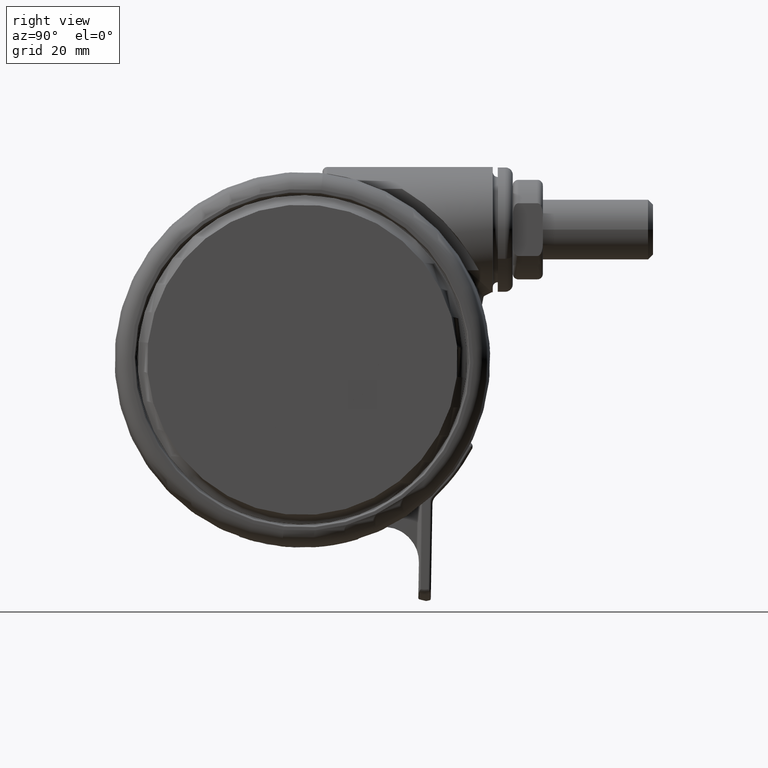
[diagram: clean part render]
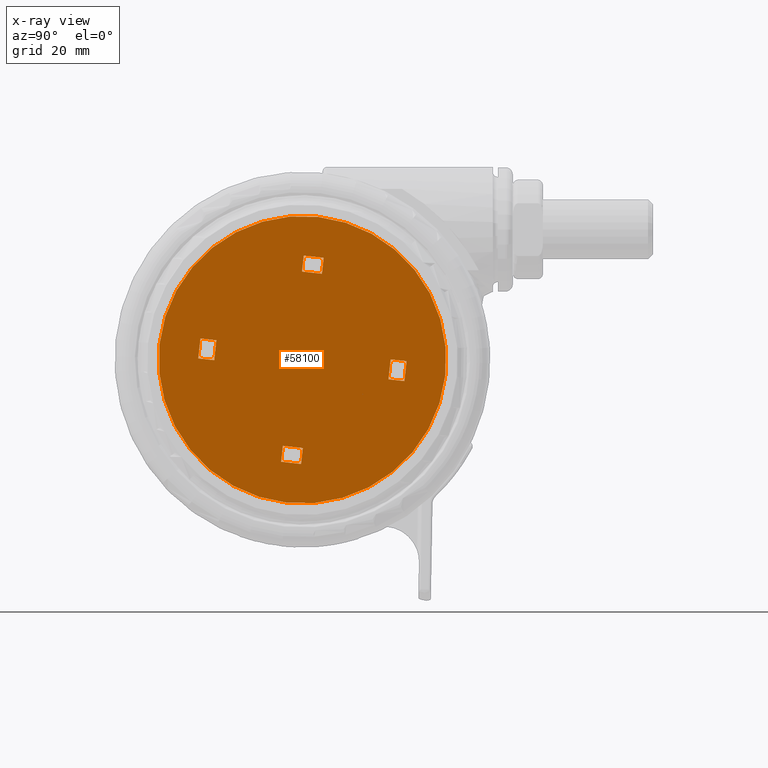
[diagram: x-ray — body ghosted, one internal face saturated and labeled with its STEP entity id]
A machine part, right view, then the same camera in x-ray: the body is ghosted and one INTERNAL B-rep face — a face not visible from any outside direction — is saturated and labeled: STEP entity #58100.
In plain terms, the highlighted planar face has unit normal (1, 0, 0).
Its self-contained STEP definition (entity closure, byte-faithful):
#60 = LINE ( 'NONE', #4554, #43756 ) ;
#337 = CARTESIAN_POINT ( 'NONE',  ( -20.69999999999999900, 1.999999999999930300, -1.500000000000001300 ) ) ;
#544 = CARTESIAN_POINT ( 'NONE',  ( 2.000000000000000000, 20.69999999999999900, -1.500000000000001300 ) ) ;
#836 = EDGE_CURVE ( 'NONE', #31007, #35996, #51727, .T. ) ;
#841 = EDGE_LOOP ( 'NONE', ( #5911, #6149 ) ) ;
#910 = DIRECTION ( 'NONE',  ( 1.000000000000000000, 0.0000000000000000000, 0.0000000000000000000 ) ) ;
#1376 = DIRECTION ( 'NONE',  ( 1.000000000000000000, -0.0000000000000000000, -0.0000000000000000000 ) ) ;
#1592 = VECTOR ( 'NONE', #23950, 1000.000000000000000 ) ;
#2419 = EDGE_CURVE ( 'NONE', #22467, #33610, #68362, .T. ) ;
#3696 = CARTESIAN_POINT ( 'NONE',  ( 17.50000000000000000, -1.999999999999820100, -1.500000000000001300 ) ) ;
#3705 = CARTESIAN_POINT ( 'NONE',  ( 20.69999999999999900, -1.999999999999784800, -1.500000000000001300 ) ) ;
#3952 = CARTESIAN_POINT ( 'NONE',  ( 2.000000000000000000, -20.69999999999999900, -1.500000000000001300 ) ) ;
#4146 = ORIENTED_EDGE ( 'NONE', *, *, #60687, .F. ) ;
#4282 = FACE_BOUND ( 'NONE', #5265, .T. ) ;
#4554 = CARTESIAN_POINT ( 'NONE',  ( 2.000000000000000000, -19.69999999999999900, -1.500000000000001300 ) ) ;
#4624 = CARTESIAN_POINT ( 'NONE',  ( -20.69999999999999900, -2.000000000000069700, -1.500000000000001300 ) ) ;
#5265 = EDGE_LOOP ( 'NONE', ( #64036, #17196, #4146, #60123 ) ) ;
#5751 = DIRECTION ( 'NONE',  ( -3.614007241618350200E-016, -1.000000000000000000, -0.0000000000000000000 ) ) ;
#5858 = DIRECTION ( 'NONE',  ( 0.0000000000000000000, 0.0000000000000000000, 1.000000000000000000 ) ) ;
#5911 = ORIENTED_EDGE ( 'NONE', *, *, #836, .T. ) ;
#6068 = FACE_BOUND ( 'NONE', #31606, .T. ) ;
#6149 = ORIENTED_EDGE ( 'NONE', *, *, #27013, .T. ) ;
#6904 = DIRECTION ( 'NONE',  ( -1.000000000000000000, -0.0000000000000000000, -0.0000000000000000000 ) ) ;
#7338 = LINE ( 'NONE', #4624, #20594 ) ;
#8305 = ORIENTED_EDGE ( 'NONE', *, *, #61871, .F. ) ;
#8411 = CARTESIAN_POINT ( 'NONE',  ( 2.000000000000000000, -17.50000000000000000, -1.500000000000001300 ) ) ;
#8857 = EDGE_LOOP ( 'NONE', ( #48553, #24567, #29585, #61770 ) ) ;
#9079 = LINE ( 'NONE', #10105, #51015 ) ;
#10105 = CARTESIAN_POINT ( 'NONE',  ( -2.000000000000000000, -17.50000000000000000, -1.500000000000001300 ) ) ;
#10216 = DIRECTION ( 'NONE',  ( -3.614007241618350200E-016, -1.000000000000000000, -0.0000000000000000000 ) ) ;
#10434 = CARTESIAN_POINT ( 'NONE',  ( 17.50000000000000000, -1.999999999999820100, -1.500000000000001300 ) ) ;
#10630 = AXIS2_PLACEMENT_3D ( 'NONE', #62614, #5858, #45735 ) ;
#12033 = VECTOR ( 'NONE', #39031, 1000.000000000000000 ) ;
#12587 = CARTESIAN_POINT ( 'NONE',  ( -2.000000000000000000, 20.69999999999999900, -1.500000000000001300 ) ) ;
#13168 = ORIENTED_EDGE ( 'NONE', *, *, #42261, .T. ) ;
#13359 = EDGE_CURVE ( 'NONE', #45980, #17792, #54345, .T. ) ;
#13704 = EDGE_CURVE ( 'NONE', #27054, #17527, #21197, .T. ) ;
#13740 = CARTESIAN_POINT ( 'NONE',  ( 0.0000000000000000000, 0.0000000000000000000, -1.500000000000001300 ) ) ;
#14094 = EDGE_LOOP ( 'NONE', ( #31095, #68940, #52192, #26950 ) ) ;
#15203 = CARTESIAN_POINT ( 'NONE',  ( -2.000000000000000000, -17.50000000000000000, -1.500000000000001300 ) ) ;
#16736 = VECTOR ( 'NONE', #23535, 1000.000000000000000 ) ;
#17196 = ORIENTED_EDGE ( 'NONE', *, *, #65356, .T. ) ;
#17527 = VERTEX_POINT ( 'NONE', #71510 ) ;
#17792 = VERTEX_POINT ( 'NONE', #63014 ) ;
#17833 = CARTESIAN_POINT ( 'NONE',  ( -19.69999999999999900, -2.000000000000065300, -1.500000000000001300 ) ) ;
#17849 = VECTOR ( 'NONE', #1376, 1000.000000000000000 ) ;
#19341 = FACE_BOUND ( 'NONE', #8857, .T. ) ;
#19451 = DIRECTION ( 'NONE',  ( 1.000000000000000000, 0.0000000000000000000, 0.0000000000000000000 ) ) ;
#20305 = VERTEX_POINT ( 'NONE', #32796 ) ;
#20327 = VECTOR ( 'NONE', #70963, 1000.000000000000000 ) ;
#20594 = VECTOR ( 'NONE', #32941, 1000.000000000000000 ) ;
#20605 = LINE ( 'NONE', #39878, #66140 ) ;
#21197 = LINE ( 'NONE', #73090, #49865 ) ;
#21897 = CARTESIAN_POINT ( 'NONE',  ( 28.69999999999999900, 0.0000000000000000000, -1.500000000000001300 ) ) ;
#22467 = VERTEX_POINT ( 'NONE', #52238 ) ;
#23355 = LINE ( 'NONE', #3696, #52001 ) ;
#23535 = DIRECTION ( 'NONE',  ( -1.000000000000000000, -3.130080614681300600E-015, -0.0000000000000000000 ) ) ;
#23950 = DIRECTION ( 'NONE',  ( -1.047444401652940200E-014, 1.000000000000000000, -0.0000000000000000000 ) ) ;
#24335 = LINE ( 'NONE', #24598, #54750 ) ;
#24567 = ORIENTED_EDGE ( 'NONE', *, *, #59881, .T. ) ;
#24598 = CARTESIAN_POINT ( 'NONE',  ( 19.69999999999999900, -1.999999999999794800, -1.500000000000001300 ) ) ;
#25435 = EDGE_CURVE ( 'NONE', #66349, #20305, #7338, .T. ) ;
#26950 = ORIENTED_EDGE ( 'NONE', *, *, #67171, .T. ) ;
#27013 = EDGE_CURVE ( 'NONE', #35996, #31007, #68014, .T. ) ;
#27054 = VERTEX_POINT ( 'NONE', #52233 ) ;
#27106 = LINE ( 'NONE', #33247, #12033 ) ;
#29585 = ORIENTED_EDGE ( 'NONE', *, *, #31173, .F. ) ;
#30108 = VECTOR ( 'NONE', #46438, 1000.000000000000000 ) ;
#31007 = VERTEX_POINT ( 'NONE', #21897 ) ;
#31095 = ORIENTED_EDGE ( 'NONE', *, *, #2419, .F. ) ;
#31173 = EDGE_CURVE ( 'NONE', #66349, #37463, #47157, .T. ) ;
#31606 = EDGE_LOOP ( 'NONE', ( #8305, #32406, #45463, #13168 ) ) ;
#31947 = VERTEX_POINT ( 'NONE', #3952 ) ;
#32406 = ORIENTED_EDGE ( 'NONE', *, *, #13359, .T. ) ;
#32796 = CARTESIAN_POINT ( 'NONE',  ( -20.69999999999999900, -2.000000000000069700, -1.500000000000001300 ) ) ;
#32941 = DIRECTION ( 'NONE',  ( 3.491481338843135300E-015, -1.000000000000000000, -0.0000000000000000000 ) ) ;
#33102 = VERTEX_POINT ( 'NONE', #10434 ) ;
#33247 = CARTESIAN_POINT ( 'NONE',  ( -17.50000000000000000, 1.999999999999940300, -1.500000000000001300 ) ) ;
#33610 = VERTEX_POINT ( 'NONE', #15203 ) ;
#34226 = VERTEX_POINT ( 'NONE', #58464 ) ;
#34532 = FACE_BOUND ( 'NONE', #14094, .T. ) ;
#34910 = CARTESIAN_POINT ( 'NONE',  ( -19.69999999999999900, 1.999999999999934900, -1.500000000000001300 ) ) ;
#34987 = DIRECTION ( 'NONE',  ( -0.0000000000000000000, -0.0000000000000000000, -1.000000000000000000 ) ) ;
#35996 = VERTEX_POINT ( 'NONE', #67185 ) ;
#36301 = VECTOR ( 'NONE', #50951, 1000.000000000000000 ) ;
#37463 = VERTEX_POINT ( 'NONE', #53504 ) ;
#37620 = VERTEX_POINT ( 'NONE', #71592 ) ;
#39031 = DIRECTION ( 'NONE',  ( -3.491481338843135300E-015, 1.000000000000000000, -0.0000000000000000000 ) ) ;
#39878 = CARTESIAN_POINT ( 'NONE',  ( 2.000000000000000000, 19.69999999999999900, -1.500000000000001300 ) ) ;
#39984 = PLANE ( 'NONE',  #10630 ) ;
#40070 = EDGE_CURVE ( 'NONE', #50044, #20305, #47166, .T. ) ;
#41217 = CARTESIAN_POINT ( 'NONE',  ( 2.000000000000000000, 17.50000000000000000, -1.500000000000001300 ) ) ;
#42261 = EDGE_CURVE ( 'NONE', #37620, #34226, #61554, .T. ) ;
#43756 = VECTOR ( 'NONE', #10216, 1000.000000000000000 ) ;
#44280 = DIRECTION ( 'NONE',  ( -1.000000000000000000, -0.0000000000000000000, -0.0000000000000000000 ) ) ;
#45463 = ORIENTED_EDGE ( 'NONE', *, *, #59675, .F. ) ;
#45735 = DIRECTION ( 'NONE',  ( 1.000000000000000000, 0.0000000000000000000, 0.0000000000000000000 ) ) ;
#45980 = VERTEX_POINT ( 'NONE', #544 ) ;
#46438 = DIRECTION ( 'NONE',  ( 1.000000000000000000, 3.130080614681300600E-015, 0.0000000000000000000 ) ) ;
#47157 = LINE ( 'NONE', #34910, #30108 ) ;
#47166 = LINE ( 'NONE', #17833, #16736 ) ;
#47239 = VERTEX_POINT ( 'NONE', #3705 ) ;
#48553 = ORIENTED_EDGE ( 'NONE', *, *, #40070, .F. ) ;
#49535 = DIRECTION ( 'NONE',  ( 1.047444401652940200E-014, -1.000000000000000000, -0.0000000000000000000 ) ) ;
#49865 = VECTOR ( 'NONE', #72840, 1000.000000000000000 ) ;
#50044 = VERTEX_POINT ( 'NONE', #59784 ) ;
#50951 = DIRECTION ( 'NONE',  ( 3.614007241618350200E-016, 1.000000000000000000, 0.0000000000000000000 ) ) ;
#51015 = VECTOR ( 'NONE', #44280, 1000.000000000000000 ) ;
#51041 = AXIS2_PLACEMENT_3D ( 'NONE', #13740, #53685, #19451 ) ;
#51341 = VECTOR ( 'NONE', #70651, 1000.000000000000000 ) ;
#51727 = CIRCLE ( 'NONE', #51041, 28.69999999999999900 ) ;
#52001 = VECTOR ( 'NONE', #49535, 1000.000000000000000 ) ;
#52192 = ORIENTED_EDGE ( 'NONE', *, *, #63049, .F. ) ;
#52233 = CARTESIAN_POINT ( 'NONE',  ( 17.50000000000000000, 2.000000000000179900, -1.500000000000001300 ) ) ;
#52238 = CARTESIAN_POINT ( 'NONE',  ( -2.000000000000000000, -20.69999999999999900, -1.500000000000001300 ) ) ;
#53129 = DIRECTION ( 'NONE',  ( -1.000000000000000000, -1.011304329236755900E-014, -0.0000000000000000000 ) ) ;
#53394 = EDGE_CURVE ( 'NONE', #47239, #17527, #60357, .T. ) ;
#53504 = CARTESIAN_POINT ( 'NONE',  ( -17.50000000000000000, 1.999999999999940300, -1.500000000000001300 ) ) ;
#53546 = CARTESIAN_POINT ( 'NONE',  ( -2.000000000000000000, 19.69999999999999900, -1.500000000000001300 ) ) ;
#53685 = DIRECTION ( 'NONE',  ( -0.0000000000000000000, -0.0000000000000000000, -1.000000000000000000 ) ) ;
#54345 = LINE ( 'NONE', #12587, #67658 ) ;
#54750 = VECTOR ( 'NONE', #53129, 1000.000000000000000 ) ;
#58100 = ADVANCED_FACE ( 'NONE', ( #64830, #34532, #6068, #19341, #4282 ), #39984, .F. ) ;
#58464 = CARTESIAN_POINT ( 'NONE',  ( 2.000000000000000000, 17.50000000000000000, -1.500000000000001300 ) ) ;
#59675 = EDGE_CURVE ( 'NONE', #37620, #17792, #68199, .T. ) ;
#59712 = VERTEX_POINT ( 'NONE', #8411 ) ;
#59728 = AXIS2_PLACEMENT_3D ( 'NONE', #69106, #34987, #910 ) ;
#59784 = CARTESIAN_POINT ( 'NONE',  ( -17.50000000000000000, -2.000000000000060000, -1.500000000000001300 ) ) ;
#59881 = EDGE_CURVE ( 'NONE', #50044, #37463, #27106, .T. ) ;
#60123 = ORIENTED_EDGE ( 'NONE', *, *, #53394, .T. ) ;
#60357 = LINE ( 'NONE', #63840, #1592 ) ;
#60687 = EDGE_CURVE ( 'NONE', #47239, #33102, #24335, .T. ) ;
#61554 = LINE ( 'NONE', #41217, #17849 ) ;
#61770 = ORIENTED_EDGE ( 'NONE', *, *, #25435, .T. ) ;
#61871 = EDGE_CURVE ( 'NONE', #45980, #34226, #20605, .T. ) ;
#62614 = CARTESIAN_POINT ( 'NONE',  ( 0.0000000000000000000, 0.0000000000000000000, -1.500000000000001300 ) ) ;
#63014 = CARTESIAN_POINT ( 'NONE',  ( -2.000000000000000000, 20.69999999999999900, -1.500000000000001300 ) ) ;
#63049 = EDGE_CURVE ( 'NONE', #59712, #31947, #60, .T. ) ;
#63840 = CARTESIAN_POINT ( 'NONE',  ( 20.69999999999999900, 2.000000000000214900, -1.500000000000001300 ) ) ;
#64036 = ORIENTED_EDGE ( 'NONE', *, *, #13704, .F. ) ;
#64830 = FACE_OUTER_BOUND ( 'NONE', #841, .T. ) ;
#65242 = CARTESIAN_POINT ( 'NONE',  ( 2.000000000000000000, -20.69999999999999900, -1.500000000000001300 ) ) ;
#65356 = EDGE_CURVE ( 'NONE', #27054, #33102, #23355, .T. ) ;
#65864 = LINE ( 'NONE', #65242, #20327 ) ;
#66140 = VECTOR ( 'NONE', #5751, 1000.000000000000000 ) ;
#66349 = VERTEX_POINT ( 'NONE', #337 ) ;
#66819 = CARTESIAN_POINT ( 'NONE',  ( -2.000000000000000000, -19.69999999999999900, -1.500000000000001300 ) ) ;
#67171 = EDGE_CURVE ( 'NONE', #59712, #33610, #9079, .T. ) ;
#67185 = CARTESIAN_POINT ( 'NONE',  ( -28.69999999999999900, 3.563722185518798200E-015, -1.500000000000001300 ) ) ;
#67658 = VECTOR ( 'NONE', #6904, 1000.000000000000000 ) ;
#68014 = CIRCLE ( 'NONE', #59728, 28.69999999999999900 ) ;
#68199 = LINE ( 'NONE', #53546, #51341 ) ;
#68362 = LINE ( 'NONE', #66819, #36301 ) ;
#68940 = ORIENTED_EDGE ( 'NONE', *, *, #72803, .T. ) ;
#69106 = CARTESIAN_POINT ( 'NONE',  ( 0.0000000000000000000, 0.0000000000000000000, -1.500000000000001300 ) ) ;
#70651 = DIRECTION ( 'NONE',  ( 3.614007241618350200E-016, 1.000000000000000000, 0.0000000000000000000 ) ) ;
#70963 = DIRECTION ( 'NONE',  ( 1.000000000000000000, -0.0000000000000000000, -0.0000000000000000000 ) ) ;
#71510 = CARTESIAN_POINT ( 'NONE',  ( 20.69999999999999900, 2.000000000000214900, -1.500000000000001300 ) ) ;
#71592 = CARTESIAN_POINT ( 'NONE',  ( -2.000000000000000000, 17.50000000000000000, -1.500000000000001300 ) ) ;
#72803 = EDGE_CURVE ( 'NONE', #22467, #31947, #65864, .T. ) ;
#72840 = DIRECTION ( 'NONE',  ( 1.000000000000000000, 1.011304329236755900E-014, 0.0000000000000000000 ) ) ;
#73090 = CARTESIAN_POINT ( 'NONE',  ( 19.69999999999999900, 2.000000000000205200, -1.500000000000001300 ) ) ;